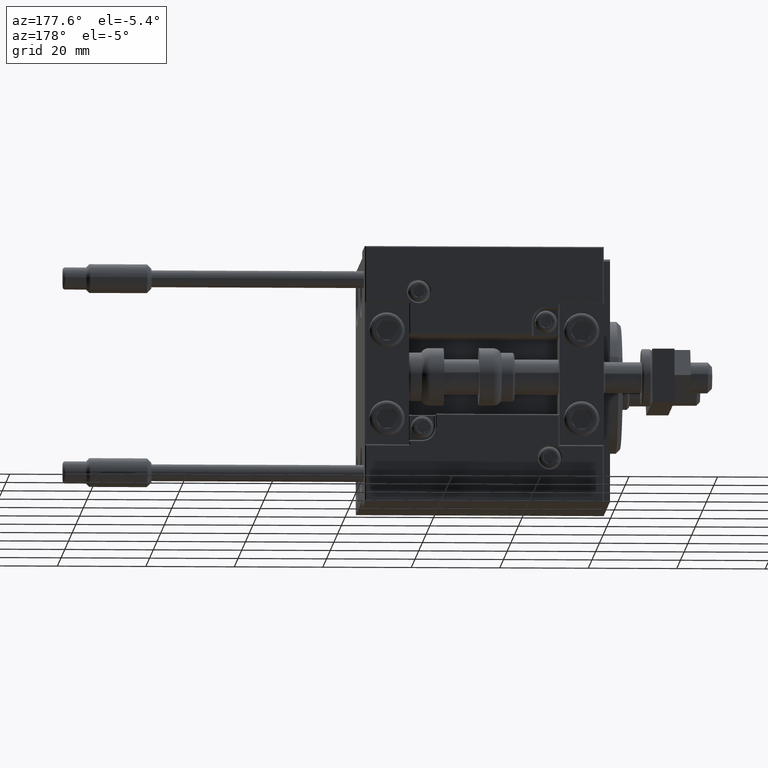
[diagram: clean part render]
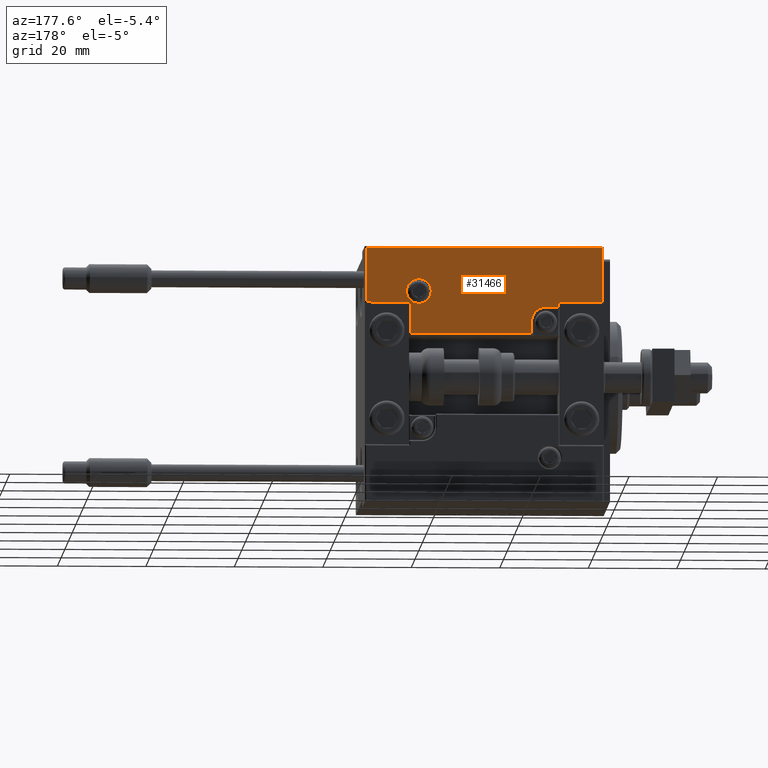
[diagram: same view with one face highlighted and labeled with its STEP entity id]
A machine part, auxiliary view. The second image highlights one B-rep face of the part: STEP entity #31466.
In plain terms, the highlighted planar face has unit normal (0, 1, -0).
Its self-contained STEP definition (entity closure, byte-faithful):
#388 = CIRCLE ( 'NONE', #32524, 2.800000000000000266 ) ;
#739 = EDGE_CURVE ( 'NONE', #29755, #25376, #12624, .T. ) ;
#831 = VECTOR ( 'NONE', #17506, 1000.000000000000000 ) ;
#1123 = PLANE ( 'NONE',  #45188 ) ;
#1139 = CARTESIAN_POINT ( 'NONE',  ( -16.99999999999999289, 7.300000000000003375, 14.00000000000000000 ) ) ;
#1743 = LINE ( 'NONE', #18274, #831 ) ;
#1800 = CARTESIAN_POINT ( 'NONE',  ( -16.69999999999999218, 7.300000000000003375, 14.00000000000000000 ) ) ;
#1840 = ORIENTED_EDGE ( 'NONE', *, *, #32477, .T. ) ;
#1851 = CARTESIAN_POINT ( 'NONE',  ( -26.99999999999993605, 19.70000000000002061, 14.00000000000000000 ) ) ;
#3126 = EDGE_CURVE ( 'NONE', #28048, #31850, #48460, .T. ) ;
#3374 = EDGE_LOOP ( 'NONE', ( #24186, #38137 ) ) ;
#3818 = CARTESIAN_POINT ( 'NONE',  ( 13.99999999999999822, 6.300000000000001599, 14.00000000000000000 ) ) ;
#4565 = VECTOR ( 'NONE', #49596, 1000.000000000000000 ) ;
#5327 = EDGE_CURVE ( 'NONE', #9985, #26802, #17661, .T. ) ;
#6033 = EDGE_CURVE ( 'NONE', #42231, #29755, #40256, .T. ) ;
#6421 = VECTOR ( 'NONE', #51130, 1000.000000000000000 ) ;
#6538 = LINE ( 'NONE', #11438, #11872 ) ;
#7178 = AXIS2_PLACEMENT_3D ( 'NONE', #40270, #28879, #20634 ) ;
#7197 = LINE ( 'NONE', #18806, #6421 ) ;
#9309 = CARTESIAN_POINT ( 'NONE',  ( 26.70000000000006324, 20.00000000000001776, 14.00000000000000000 ) ) ;
#9985 = VERTEX_POINT ( 'NONE', #1800 ) ;
#10430 = CARTESIAN_POINT ( 'NONE',  ( -26.69999999999994600, 7.000000000000005329, 14.00000000000000000 ) ) ;
#10570 = LINE ( 'NONE', #11076, #4565 ) ;
#10819 = VERTEX_POINT ( 'NONE', #40648 ) ;
#11076 = CARTESIAN_POINT ( 'NONE',  ( 27.00000000000006395, 7.300000000000007816, 14.00000000000000000 ) ) ;
#11239 = EDGE_CURVE ( 'NONE', #21811, #42231, #1743, .T. ) ;
#11438 = CARTESIAN_POINT ( 'NONE',  ( 11.00000000000000000, 0.3000000000000032085, 14.00000000000000000 ) ) ;
#11872 = VECTOR ( 'NONE', #49695, 1000.000000000000000 ) ;
#12284 = LINE ( 'NONE', #1139, #13865 ) ;
#12300 = ORIENTED_EDGE ( 'NONE', *, *, #46098, .T. ) ;
#12556 = ORIENTED_EDGE ( 'NONE', *, *, #32257, .T. ) ;
#12624 = LINE ( 'NONE', #23245, #36763 ) ;
#13511 = FACE_OUTER_BOUND ( 'NONE', #15994, .T. ) ;
#13653 = VECTOR ( 'NONE', #49357, 1000.000000000000000 ) ;
#13865 = VECTOR ( 'NONE', #44306, 1000.000000000000000 ) ;
#13998 = LINE ( 'NONE', #1851, #46662 ) ;
#15514 = CARTESIAN_POINT ( 'NONE',  ( 13.99999999999999822, 3.000000000000002665, 14.00000000000000000 ) ) ;
#15994 = EDGE_LOOP ( 'NONE', ( #38622, #49733, #16921, #47014, #48783, #12556, #12300, #29611, #42989, #37762, #1840 ) ) ;
#16419 = VERTEX_POINT ( 'NONE', #34488 ) ;
#16921 = ORIENTED_EDGE ( 'NONE', *, *, #11239, .T. ) ;
#17506 = DIRECTION ( 'NONE',  ( -0.000000000000000000, 1.000000000000000000, -0.000000000000000000 ) ) ;
#17609 = CARTESIAN_POINT ( 'NONE',  ( 16.69999999999999929, 7.300000000000009592, 14.00000000000000000 ) ) ;
#17661 = LINE ( 'NONE', #37033, #36940 ) ;
#18274 = CARTESIAN_POINT ( 'NONE',  ( 10.69999999999999929, 3.000000000000003109, 14.00000000000000000 ) ) ;
#18806 = CARTESIAN_POINT ( 'NONE',  ( 16.69999999999999929, 7.000000000000009770, 14.00000000000000000 ) ) ;
#19554 = CARTESIAN_POINT ( 'NONE',  ( 16.69999999999999929, 6.300000000000003375, 14.00000000000000000 ) ) ;
#19730 = EDGE_CURVE ( 'NONE', #26802, #21811, #6538, .T. ) ;
#20634 = DIRECTION ( 'NONE',  ( 1.000000000000000000, 0.000000000000000000, 0.000000000000000000 ) ) ;
#21023 = DIRECTION ( 'NONE',  ( -0.000000000000000000, 0.000000000000000000, 1.000000000000000000 ) ) ;
#21494 = CARTESIAN_POINT ( 'NONE',  ( -14.79999999999994920, 9.800000000000004263, 14.00000000000000000 ) ) ;
#21811 = VERTEX_POINT ( 'NONE', #23675 ) ;
#22033 = CARTESIAN_POINT ( 'NONE',  ( -26.69999999999994600, 7.300000000000005151, 14.00000000000000000 ) ) ;
#22114 = EDGE_CURVE ( 'NONE', #31850, #28048, #388, .T. ) ;
#22751 = DIRECTION ( 'NONE',  ( 1.000000000000000000, 0.000000000000000000, 0.000000000000000000 ) ) ;
#23245 = CARTESIAN_POINT ( 'NONE',  ( 17.00000000000000000, 6.300000000000003375, 14.00000000000000000 ) ) ;
#23675 = CARTESIAN_POINT ( 'NONE',  ( 10.69999999999999929, 0.3000000000000032085, 14.00000000000000000 ) ) ;
#23781 = AXIS2_PLACEMENT_3D ( 'NONE', #15514, #35393, #22751 ) ;
#24186 = ORIENTED_EDGE ( 'NONE', *, *, #22114, .T. ) ;
#25376 = VERTEX_POINT ( 'NONE', #19554 ) ;
#26802 = VERTEX_POINT ( 'NONE', #49434 ) ;
#28048 = VERTEX_POINT ( 'NONE', #30544 ) ;
#28444 = CARTESIAN_POINT ( 'NONE',  ( 10.69999999999999929, 3.000000000000003109, 14.00000000000000000 ) ) ;
#28879 = DIRECTION ( 'NONE',  ( 0.000000000000000000, -0.000000000000000000, -1.000000000000000000 ) ) ;
#29023 = FACE_BOUND ( 'NONE', #3374, .T. ) ;
#29611 = ORIENTED_EDGE ( 'NONE', *, *, #50112, .T. ) ;
#29755 = VERTEX_POINT ( 'NONE', #3818 ) ;
#30307 = LINE ( 'NONE', #10430, #37470 ) ;
#30514 = VERTEX_POINT ( 'NONE', #22033 ) ;
#30544 = CARTESIAN_POINT ( 'NONE',  ( -17.59999999999994813, 9.800000000000004263, 14.00000000000000000 ) ) ;
#31466 = ADVANCED_FACE ( 'NONE', ( #29023, #13511 ), #1123, .T. ) ;
#31850 = VERTEX_POINT ( 'NONE', #41344 ) ;
#32257 = EDGE_CURVE ( 'NONE', #25376, #34759, #7197, .T. ) ;
#32477 = EDGE_CURVE ( 'NONE', #30514, #9985, #12284, .T. ) ;
#32524 = AXIS2_PLACEMENT_3D ( 'NONE', #21494, #37226, #40624 ) ;
#34488 = CARTESIAN_POINT ( 'NONE',  ( 26.70000000000006324, 7.300000000000007816, 14.00000000000000000 ) ) ;
#34759 = VERTEX_POINT ( 'NONE', #17609 ) ;
#35393 = DIRECTION ( 'NONE',  ( 0.000000000000000000, -0.000000000000000000, -1.000000000000000000 ) ) ;
#35516 = CARTESIAN_POINT ( 'NONE',  ( -26.69999999999993534, 19.70000000000002061, 14.00000000000000000 ) ) ;
#36512 = DIRECTION ( 'NONE',  ( 1.000000000000000000, 0.000000000000000000, 0.000000000000000000 ) ) ;
#36763 = VECTOR ( 'NONE', #49300, 1000.000000000000000 ) ;
#36940 = VECTOR ( 'NONE', #37279, 1000.000000000000000 ) ;
#37033 = CARTESIAN_POINT ( 'NONE',  ( -16.69999999999999218, 3.252606517456513302E-15, 14.00000000000000000 ) ) ;
#37226 = DIRECTION ( 'NONE',  ( 0.000000000000000000, -0.000000000000000000, -1.000000000000000000 ) ) ;
#37279 = DIRECTION ( 'NONE',  ( 0.000000000000000000, -1.000000000000000000, 0.000000000000000000 ) ) ;
#37470 = VECTOR ( 'NONE', #45824, 1000.000000000000000 ) ;
#37762 = ORIENTED_EDGE ( 'NONE', *, *, #44462, .T. ) ;
#38137 = ORIENTED_EDGE ( 'NONE', *, *, #3126, .T. ) ;
#38622 = ORIENTED_EDGE ( 'NONE', *, *, #5327, .T. ) ;
#40256 = CIRCLE ( 'NONE', #23781, 3.299999999999997158 ) ;
#40270 = CARTESIAN_POINT ( 'NONE',  ( -14.79999999999994920, 9.800000000000004263, 14.00000000000000000 ) ) ;
#40624 = DIRECTION ( 'NONE',  ( 1.000000000000000000, 0.000000000000000000, 0.000000000000000000 ) ) ;
#40648 = CARTESIAN_POINT ( 'NONE',  ( 26.70000000000006324, 19.70000000000001705, 14.00000000000000000 ) ) ;
#40879 = DIRECTION ( 'NONE',  ( -1.000000000000000000, 6.424901762877063495E-17, -0.000000000000000000 ) ) ;
#40906 = CARTESIAN_POINT ( 'NONE',  ( 0.000000000000000000, 0.000000000000000000, 14.00000000000000000 ) ) ;
#41344 = CARTESIAN_POINT ( 'NONE',  ( -11.99999999999994849, 9.800000000000004263, 14.00000000000000000 ) ) ;
#42231 = VERTEX_POINT ( 'NONE', #28444 ) ;
#42989 = ORIENTED_EDGE ( 'NONE', *, *, #46567, .T. ) ;
#44278 = VERTEX_POINT ( 'NONE', #35516 ) ;
#44306 = DIRECTION ( 'NONE',  ( 1.000000000000000000, -1.734723475976815230E-16, 0.000000000000000000 ) ) ;
#44462 = EDGE_CURVE ( 'NONE', #44278, #30514, #30307, .T. ) ;
#44706 = LINE ( 'NONE', #9309, #13653 ) ;
#45188 = AXIS2_PLACEMENT_3D ( 'NONE', #40906, #21023, #36512 ) ;
#45824 = DIRECTION ( 'NONE',  ( -8.006416042969869188E-16, -1.000000000000000000, 0.000000000000000000 ) ) ;
#46098 = EDGE_CURVE ( 'NONE', #34759, #16419, #10570, .T. ) ;
#46567 = EDGE_CURVE ( 'NONE', #10819, #44278, #13998, .T. ) ;
#46662 = VECTOR ( 'NONE', #40879, 1000.000000000000000 ) ;
#47014 = ORIENTED_EDGE ( 'NONE', *, *, #6033, .T. ) ;
#48460 = CIRCLE ( 'NONE', #7178, 2.800000000000000266 ) ;
#48783 = ORIENTED_EDGE ( 'NONE', *, *, #739, .T. ) ;
#49300 = DIRECTION ( 'NONE',  ( 1.000000000000000000, 5.782411586589357639E-16, -0.000000000000000000 ) ) ;
#49357 = DIRECTION ( 'NONE',  ( 0.000000000000000000, 1.000000000000000000, -0.000000000000000000 ) ) ;
#49434 = CARTESIAN_POINT ( 'NONE',  ( -16.69999999999999218, 0.3000000000000032085, 14.00000000000000000 ) ) ;
#49596 = DIRECTION ( 'NONE',  ( 1.000000000000000000, -1.734723475976796001E-16, 0.000000000000000000 ) ) ;
#49695 = DIRECTION ( 'NONE',  ( 1.000000000000000000, -0.000000000000000000, 0.000000000000000000 ) ) ;
#49733 = ORIENTED_EDGE ( 'NONE', *, *, #19730, .T. ) ;
#50112 = EDGE_CURVE ( 'NONE', #16419, #10819, #44706, .T. ) ;
#51130 = DIRECTION ( 'NONE',  ( 9.912705577010318647E-16, 1.000000000000000000, 0.000000000000000000 ) ) ;